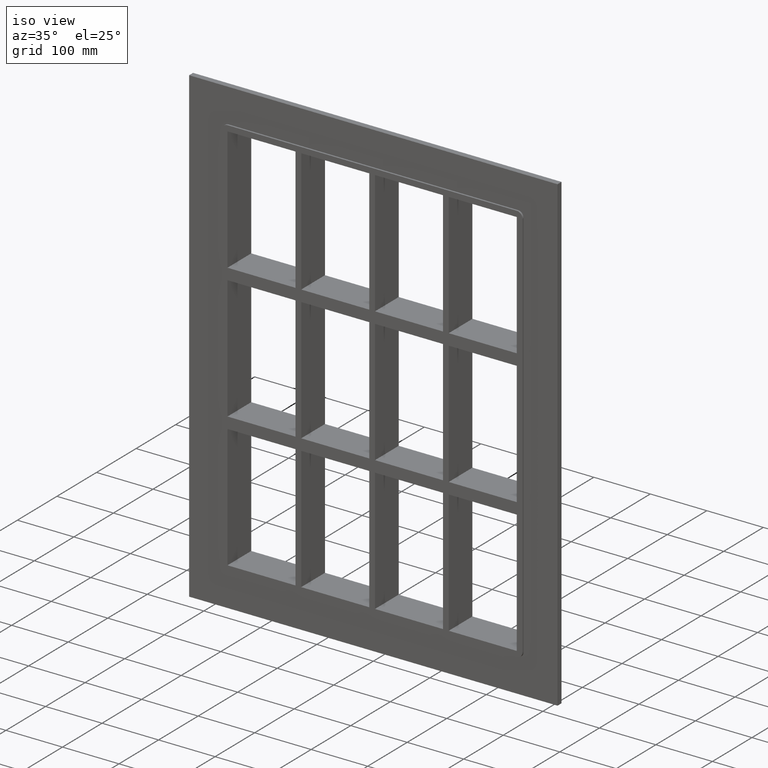
[diagram: clean part render]
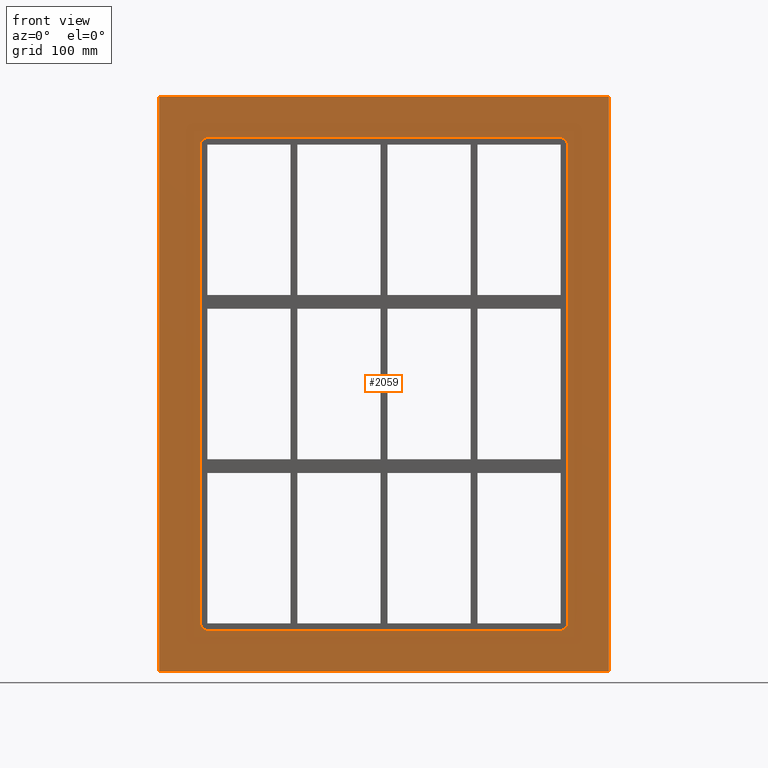
[diagram: tour spotlight — one face highlighted and labeled with its STEP entity id]
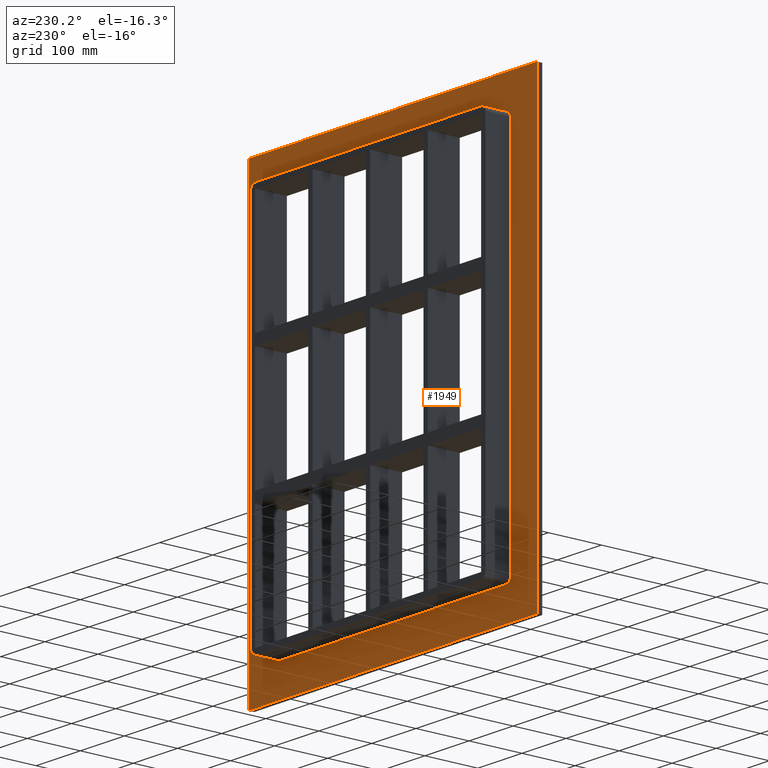
[diagram: tour spotlight — one face highlighted and labeled with its STEP entity id]
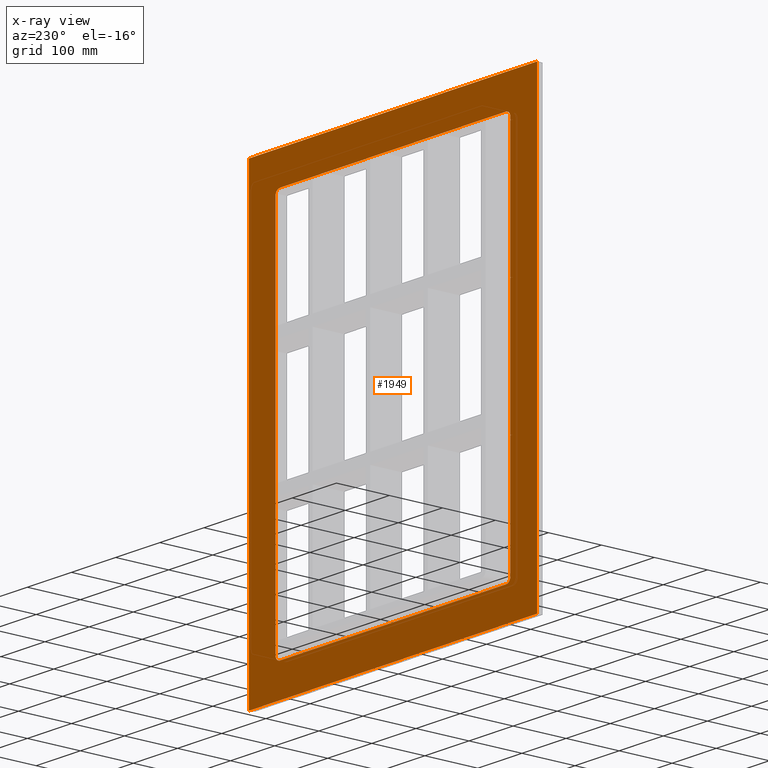
[diagram: x-ray of the same camera — body ghosted, this tour face saturated]
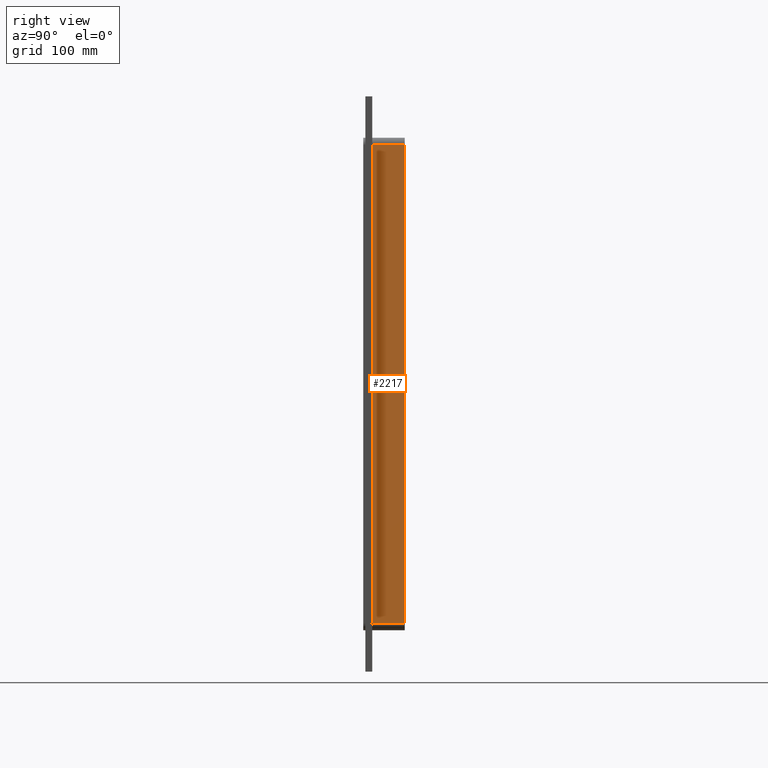
[diagram: tour spotlight — one face highlighted and labeled with its STEP entity id]
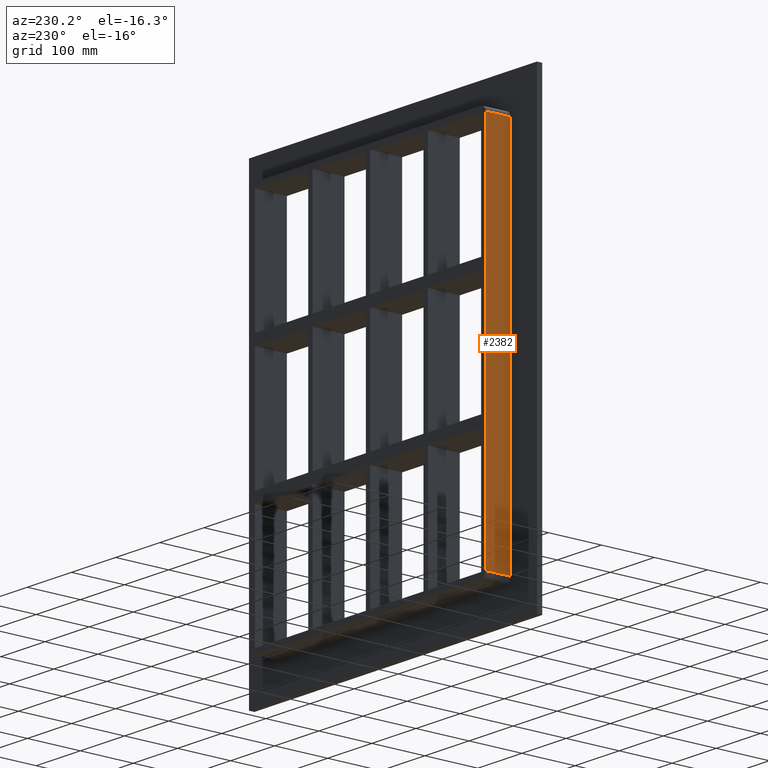
[diagram: tour spotlight — one face highlighted and labeled with its STEP entity id]
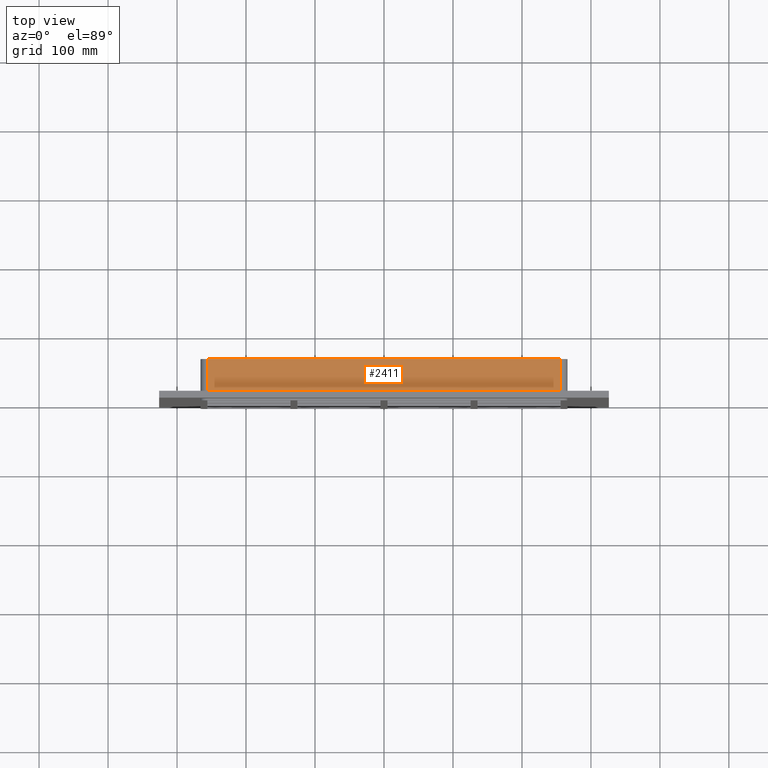
[diagram: tour spotlight — one face highlighted and labeled with its STEP entity id]
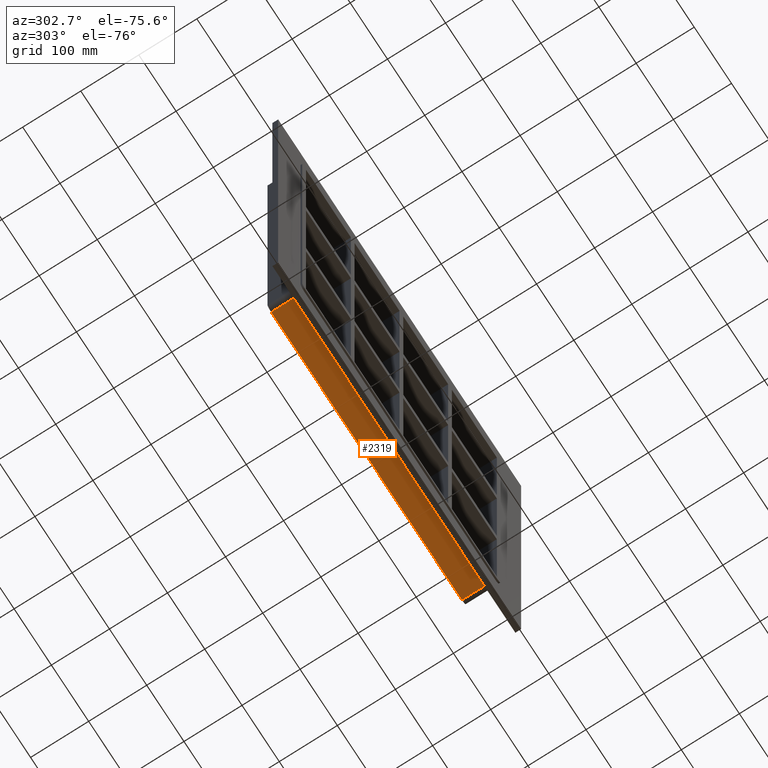
[diagram: tour spotlight — one face highlighted and labeled with its STEP entity id]
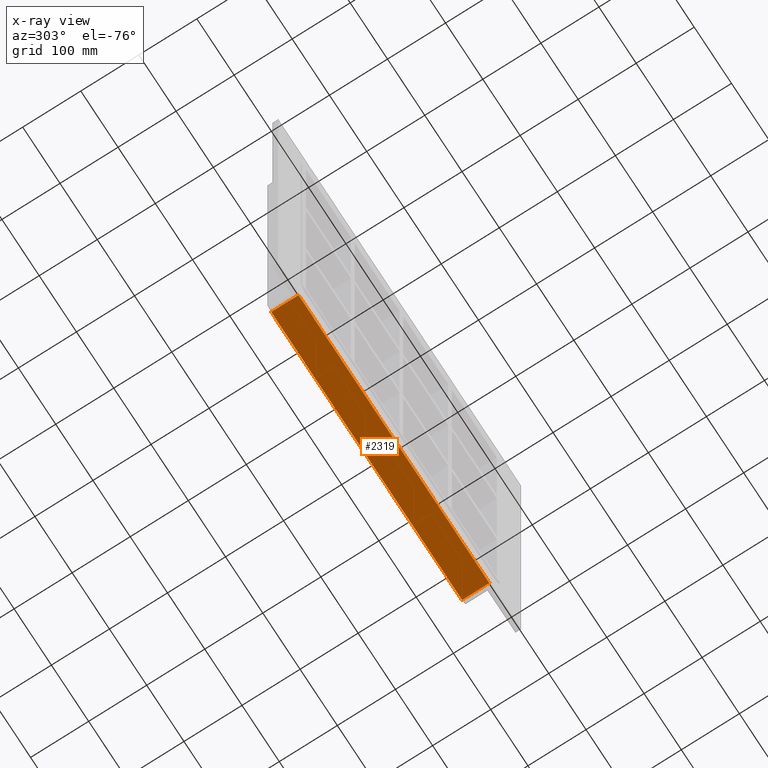
[diagram: x-ray of the same camera — body ghosted, this tour face saturated]
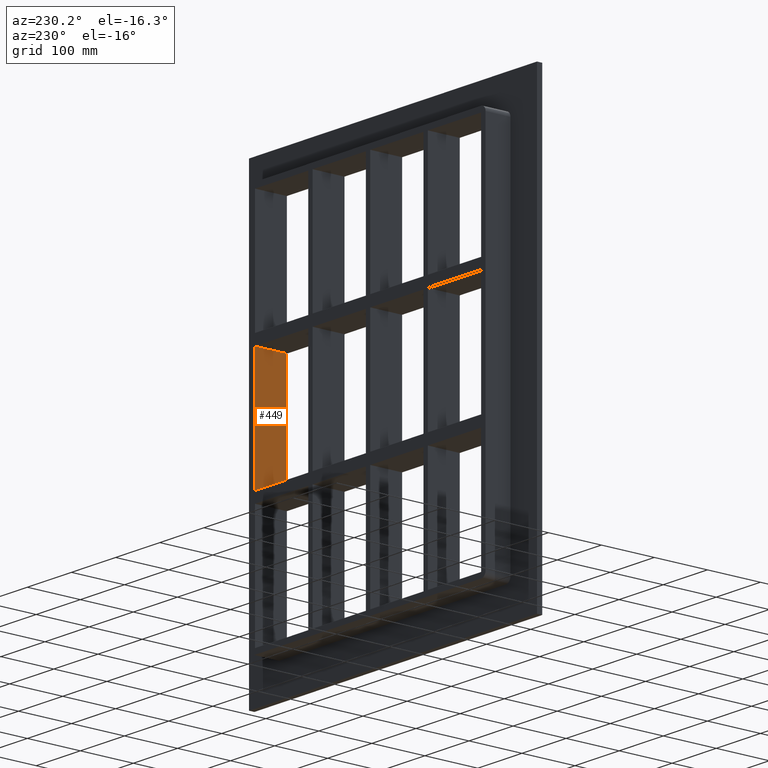
[diagram: tour spotlight — one face highlighted and labeled with its STEP entity id]
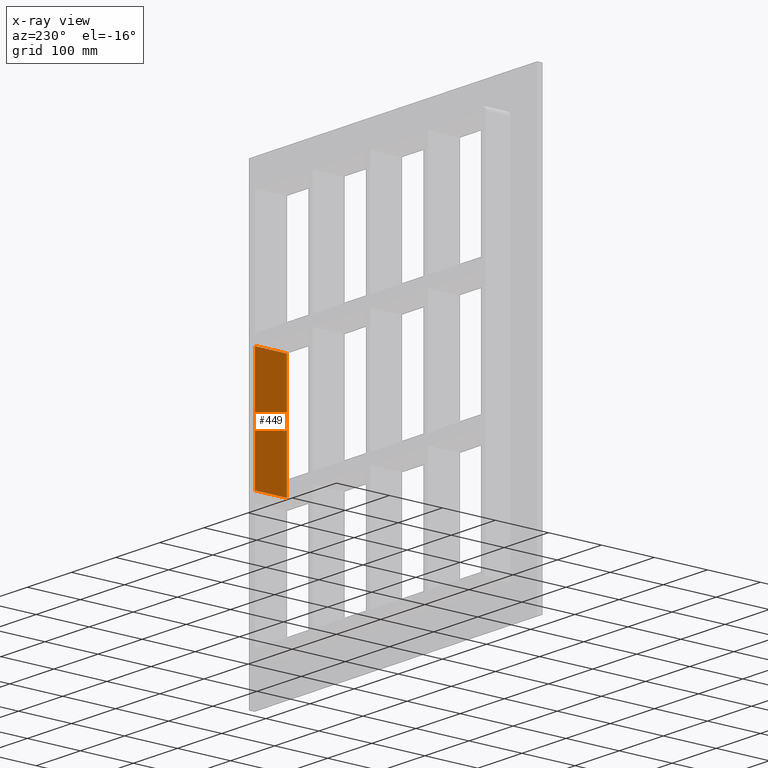
[diagram: x-ray of the same camera — body ghosted, this tour face saturated]
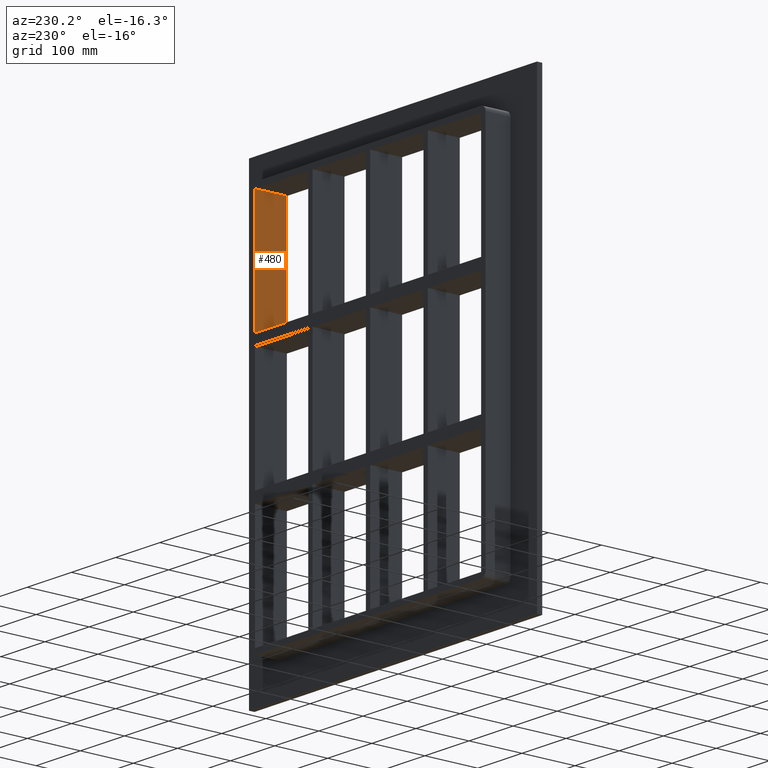
[diagram: tour spotlight — one face highlighted and labeled with its STEP entity id]
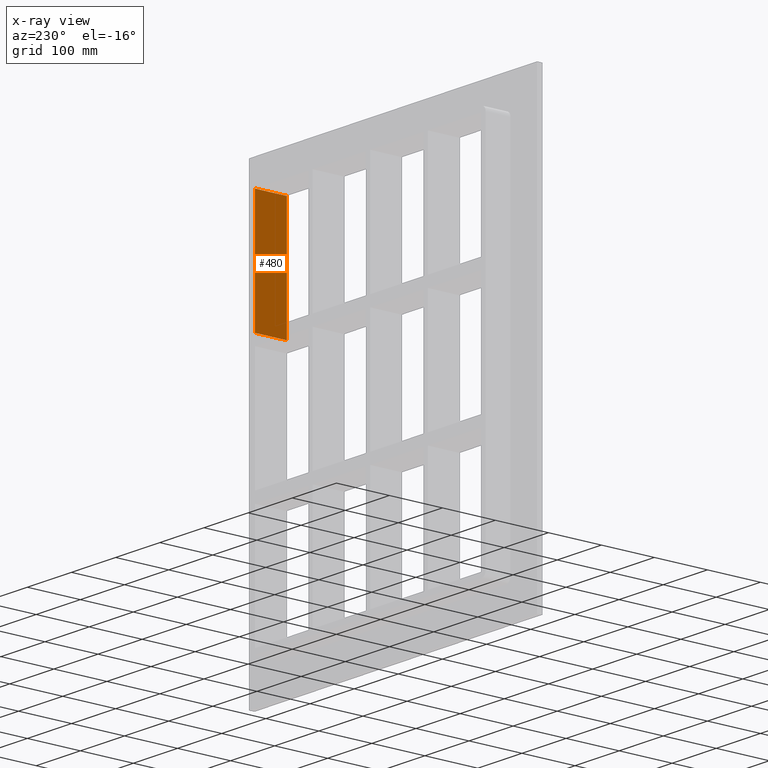
[diagram: x-ray of the same camera — body ghosted, this tour face saturated]
A machine part: a face-by-face anatomy tour. The part has 72 B-rep faces; the first image is the clean iso view, then the 8 largest visible faces are spotlighted one at a time (largest first), each with its STEP entity span.

Face 1 — front view, entity #2059. In plain terms, the highlighted planar face has unit normal (0, 1, 0).
Definition (entity closure, byte-faithful):
#1950=CARTESIAN_POINT('',(-2.295158E-014,0.0,0.0));
#1951=DIRECTION('',(0.0,1.0,0.0));
#1952=DIRECTION('',(0.0,0.0,1.0));
#1953=AXIS2_PLACEMENT_3D('',#1950,#1951,#1952);
#1954=PLANE('',#1953);
#1955=CARTESIAN_POINT('',(-326.0,0.0,417.00000000000011));
#1956=VERTEX_POINT('',#1955);
#1957=CARTESIAN_POINT('',(325.99999999999994,0.0,417.00000000000011));
#1958=VERTEX_POINT('',#1957);
#1959=CARTESIAN_POINT('',(-326.0,0.0,417.00000000000011));
#1960=DIRECTION('',(1.0,0.0,0.0));
#1961=VECTOR('',#1960,651.99999999999989);
#1962=LINE('',#1959,#1961);
#1963=EDGE_CURVE('',#1956,#1958,#1962,.T.);
#1964=ORIENTED_EDGE('',*,*,#1963,.F.);
#1965=CARTESIAN_POINT('',(-326.0,0.0,-417.00000000000011));
#1966=VERTEX_POINT('',#1965);
#1967=CARTESIAN_POINT('',(-326.0,0.0,-417.00000000000011));
#1968=DIRECTION('',(0.0,0.0,1.0));
#1969=VECTOR('',#1968,834.00000000000023);
#1970=LINE('',#1967,#1969);
#1971=EDGE_CURVE('',#1966,#1956,#1970,.T.);
#1972=ORIENTED_EDGE('',*,*,#1971,.F.);
#1973=CARTESIAN_POINT('',(325.99999999999994,0.0,-417.00000000000011));
#1974=VERTEX_POINT('',#1973);
#1975=CARTESIAN_POINT('',(325.99999999999994,0.0,-417.00000000000011));
#1976=DIRECTION('',(-1.0,0.0,0.0));
#1977=VECTOR('',#1976,651.99999999999989);
#1978=LINE('',#1975,#1977);
#1979=EDGE_CURVE('',#1974,#1966,#1978,.T.);
#1980=ORIENTED_EDGE('',*,*,#1979,.F.);
#1981=CARTESIAN_POINT('',(325.99999999999994,0.0,417.00000000000011));
#1982=DIRECTION('',(0.0,0.0,-1.0));
#1983=VECTOR('',#1982,834.00000000000023);
#1984=LINE('',#1981,#1983);
#1985=EDGE_CURVE('',#1958,#1974,#1984,.T.);
#1986=ORIENTED_EDGE('',*,*,#1985,.F.);
#1987=EDGE_LOOP('',(#1964,#1972,#1980,#1986));
#1988=FACE_OUTER_BOUND('',#1987,.T.);
#1989=CARTESIAN_POINT('',(-266.0,0.0,-347.0));
#1990=VERTEX_POINT('',#1989);
#1991=CARTESIAN_POINT('',(-256.0,0.0,-357.0));
#1992=VERTEX_POINT('',#1991);
#1993=CARTESIAN_POINT('',(-256.0,0.0,-347.0));
#1994=DIRECTION('',(0.0,-1.0,0.0));
#1995=DIRECTION('',(-0.707106781186547,0.0,-0.707106781186547));
#1996=AXIS2_PLACEMENT_3D('',#1993,#1994,#1995);
#1997=CIRCLE('',#1996,9.999999999999998);
#1998=EDGE_CURVE('',#1990,#1992,#1997,.T.);
#1999=ORIENTED_EDGE('',*,*,#1998,.F.);
#2000=CARTESIAN_POINT('',(-266.0,0.0,347.0));
#2001=VERTEX_POINT('',#2000);
#2002=CARTESIAN_POINT('',(-266.0,0.0,347.0));
#2003=DIRECTION('',(0.0,0.0,-1.0));
#2004=VECTOR('',#2003,694.0);
#2005=LINE('',#2002,#2004);
#2006=EDGE_CURVE('',#2001,#1990,#2005,.T.);
#2007=ORIENTED_EDGE('',*,*,#2006,.F.);
#2008=CARTESIAN_POINT('',(-256.0,0.0,357.0));
#2009=VERTEX_POINT('',#2008);
#2010=CARTESIAN_POINT('',(-256.0,0.0,347.0));
#2011=DIRECTION('',(0.0,-1.0,0.0));
#2012=DIRECTION('',(-0.707106781186547,0.0,0.707106781186547));
#2013=AXIS2_PLACEMENT_3D('',#2010,#2011,#2012);
#2014=CIRCLE('',#2013,9.999999999999998);
#2015=EDGE_CURVE('',#2009,#2001,#2014,.T.);
#2016=ORIENTED_EDGE('',*,*,#2015,.F.);
#2017=CARTESIAN_POINT('',(256.0,0.0,357.0));
#2018=VERTEX_POINT('',#2017);
#2019=CARTESIAN_POINT('',(256.0,0.0,357.0));
#2020=DIRECTION('',(-1.0,0.0,0.0));
#2021=VECTOR('',#2020,512.0);
#2022=LINE('',#2019,#2021);
#2023=EDGE_CURVE('',#2018,#2009,#2022,.T.);
#2024=ORIENTED_EDGE('',*,*,#2023,.F.);
#2025=CARTESIAN_POINT('',(266.0,0.0,347.0));
#2026=VERTEX_POINT('',#2025);
#2027=CARTESIAN_POINT('',(256.0,0.0,347.0));
#2028=DIRECTION('',(0.0,-1.0,0.0));
#2029=DIRECTION('',(0.707106781186547,0.0,0.707106781186547));
#2030=AXIS2_PLACEMENT_3D('',#2027,#2028,#2029);
#2031=CIRCLE('',#2030,9.999999999999998);
#2032=EDGE_CURVE('',#2026,#2018,#2031,.T.);
#2033=ORIENTED_EDGE('',*,*,#2032,.F.);
#2034=CARTESIAN_POINT('',(266.0,0.0,-347.0));
#2035=VERTEX_POINT('',#2034);
#2036=CARTESIAN_POINT('',(266.0,0.0,-347.0));
#2037=DIRECTION('',(0.0,0.0,1.0));
#2038=VECTOR('',#2037,694.0);
#2039=LINE('',#2036,#2038);
#2040=EDGE_CURVE('',#2035,#2026,#2039,.T.);
#2041=ORIENTED_EDGE('',*,*,#2040,.F.);
#2042=CARTESIAN_POINT('',(256.0,0.0,-357.0));
#2043=VERTEX_POINT('',#2042);
#2044=CARTESIAN_POINT('',(256.0,0.0,-347.0));
#2045=DIRECTION('',(0.0,-1.0,0.0));
#2046=DIRECTION('',(0.707106781186547,0.0,-0.707106781186547));
#2047=AXIS2_PLACEMENT_3D('',#2044,#2045,#2046);
#2048=CIRCLE('',#2047,9.999999999999998);
#2049=EDGE_CURVE('',#2043,#2035,#2048,.T.);
#2050=ORIENTED_EDGE('',*,*,#2049,.F.);
#2051=CARTESIAN_POINT('',(-256.0,0.0,-357.0));
#2052=DIRECTION('',(1.0,0.0,0.0));
#2053=VECTOR('',#2052,512.0);
#2054=LINE('',#2051,#2053);
#2055=EDGE_CURVE('',#1992,#2043,#2054,.T.);
#2056=ORIENTED_EDGE('',*,*,#2055,.F.);
#2057=EDGE_LOOP('',(#1999,#2007,#2016,#2024,#2033,#2041,#2050,#2056));
#2058=FACE_BOUND('',#2057,.T.);
#2059=ADVANCED_FACE('',(#1988,#2058),#1954,.F.);

Face 2 — auxiliary view, entity #1949. An x-ray twin of the same camera follows (body ghosted, this face saturated) — the face is partly hidden behind the body. In plain terms, the highlighted planar face has unit normal (0, 1, 0).
Definition (entity closure, byte-faithful):
#1840=CARTESIAN_POINT('',(-2.295158E-014,10.0,0.0));
#1841=DIRECTION('',(0.0,1.0,0.0));
#1842=DIRECTION('',(0.0,0.0,1.0));
#1843=AXIS2_PLACEMENT_3D('',#1840,#1841,#1842);
#1844=PLANE('',#1843);
#1845=CARTESIAN_POINT('',(-326.0,10.0,417.00000000000011));
#1846=VERTEX_POINT('',#1845);
#1847=CARTESIAN_POINT('',(325.99999999999989,10.0,417.00000000000011));
#1848=VERTEX_POINT('',#1847);
#1849=CARTESIAN_POINT('',(-326.0,10.0,417.00000000000011));
#1850=DIRECTION('',(1.0,0.0,0.0));
#1851=VECTOR('',#1850,651.99999999999989);
#1852=LINE('',#1849,#1851);
#1853=EDGE_CURVE('',#1846,#1848,#1852,.T.);
#1854=ORIENTED_EDGE('',*,*,#1853,.T.);
#1855=CARTESIAN_POINT('',(325.99999999999989,10.0,-417.00000000000011));
#1856=VERTEX_POINT('',#1855);
#1857=CARTESIAN_POINT('',(325.99999999999994,10.0,417.00000000000011));
#1858=DIRECTION('',(0.0,0.0,-1.0));
#1859=VECTOR('',#1858,834.00000000000023);
#1860=LINE('',#1857,#1859);
#1861=EDGE_CURVE('',#1848,#1856,#1860,.T.);
#1862=ORIENTED_EDGE('',*,*,#1861,.T.);
#1863=CARTESIAN_POINT('',(-326.0,10.0,-417.00000000000011));
#1864=VERTEX_POINT('',#1863);
#1865=CARTESIAN_POINT('',(325.99999999999994,10.0,-417.00000000000011));
#1866=DIRECTION('',(-1.0,0.0,0.0));
#1867=VECTOR('',#1866,651.99999999999989);
#1868=LINE('',#1865,#1867);
#1869=EDGE_CURVE('',#1856,#1864,#1868,.T.);
#1870=ORIENTED_EDGE('',*,*,#1869,.T.);
#1871=CARTESIAN_POINT('',(-326.0,10.0,-417.00000000000011));
#1872=DIRECTION('',(0.0,0.0,1.0));
#1873=VECTOR('',#1872,834.00000000000023);
#1874=LINE('',#1871,#1873);
#1875=EDGE_CURVE('',#1864,#1846,#1874,.T.);
#1876=ORIENTED_EDGE('',*,*,#1875,.T.);
#1877=EDGE_LOOP('',(#1854,#1862,#1870,#1876));
#1878=FACE_OUTER_BOUND('',#1877,.T.);
#1879=CARTESIAN_POINT('',(-256.0,10.0,-357.0));
#1880=VERTEX_POINT('',#1879);
#1881=CARTESIAN_POINT('',(-266.0,10.0,-347.0));
#1882=VERTEX_POINT('',#1881);
#1883=CARTESIAN_POINT('',(-256.0,10.0,-347.0));
#1884=DIRECTION('',(0.0,1.0,0.0));
#1885=DIRECTION('',(-0.707106781186547,0.0,-0.707106781186547));
#1886=AXIS2_PLACEMENT_3D('',#1883,#1884,#1885);
#1887=CIRCLE('',#1886,9.999999999999998);
#1888=EDGE_CURVE('',#1880,#1882,#1887,.T.);
#1889=ORIENTED_EDGE('',*,*,#1888,.F.);
#1890=CARTESIAN_POINT('',(256.0,10.0,-357.0));
#1891=VERTEX_POINT('',#1890);
#1892=CARTESIAN_POINT('',(256.0,10.0,-357.0));
#1893=DIRECTION('',(-1.0,0.0,0.0));
#1894=VECTOR('',#1893,512.0);
#1895=LINE('',#1892,#1894);
#1896=EDGE_CURVE('',#1891,#1880,#1895,.T.);
#1897=ORIENTED_EDGE('',*,*,#1896,.F.);
#1898=CARTESIAN_POINT('',(266.0,10.0,-347.0));
#1899=VERTEX_POINT('',#1898);
#1900=CARTESIAN_POINT('',(256.0,10.0,-347.0));
#1901=DIRECTION('',(0.0,1.0,0.0));
#1902=DIRECTION('',(0.707106781186547,0.0,-0.707106781186547));
#1903=AXIS2_PLACEMENT_3D('',#1900,#1901,#1902);
#1904=CIRCLE('',#1903,9.999999999999998);
#1905=EDGE_CURVE('',#1899,#1891,#1904,.T.);
#1906=ORIENTED_EDGE('',*,*,#1905,.F.);
#1907=CARTESIAN_POINT('',(266.0,10.0,347.0));
#1908=VERTEX_POINT('',#1907);
#1909=CARTESIAN_POINT('',(266.0,10.0,347.0));
#1910=DIRECTION('',(0.0,0.0,-1.0));
#1911=VECTOR('',#1910,694.0);
#1912=LINE('',#1909,#1911);
#1913=EDGE_CURVE('',#1908,#1899,#1912,.T.);
#1914=ORIENTED_EDGE('',*,*,#1913,.F.);
#1915=CARTESIAN_POINT('',(256.0,10.0,357.0));
#1916=VERTEX_POINT('',#1915);
#1917=CARTESIAN_POINT('',(256.0,10.0,347.0));
#1918=DIRECTION('',(0.0,1.0,0.0));
#1919=DIRECTION('',(0.707106781186547,0.0,0.707106781186547));
#1920=AXIS2_PLACEMENT_3D('',#1917,#1918,#1919);
#1921=CIRCLE('',#1920,9.999999999999998);
#1922=EDGE_CURVE('',#1916,#1908,#1921,.T.);
#1923=ORIENTED_EDGE('',*,*,#1922,.F.);
#1924=CARTESIAN_POINT('',(-256.0,10.0,357.0));
#1925=VERTEX_POINT('',#1924);
#1926=CARTESIAN_POINT('',(-256.0,10.0,357.0));
#1927=DIRECTION('',(1.0,0.0,0.0));
#1928=VECTOR('',#1927,512.0);
#1929=LINE('',#1926,#1928);
#1930=EDGE_CURVE('',#1925,#1916,#1929,.T.);
#1931=ORIENTED_EDGE('',*,*,#1930,.F.);
#1932=CARTESIAN_POINT('',(-266.0,10.0,347.0));
#1933=VERTEX_POINT('',#1932);
#1934=CARTESIAN_POINT('',(-256.0,10.0,347.0));
#1935=DIRECTION('',(0.0,1.0,0.0));
#1936=DIRECTION('',(-0.707106781186547,0.0,0.707106781186547));
#1937=AXIS2_PLACEMENT_3D('',#1934,#1935,#1936);
#1938=CIRCLE('',#1937,9.999999999999998);
#1939=EDGE_CURVE('',#1933,#1925,#1938,.T.);
#1940=ORIENTED_EDGE('',*,*,#1939,.F.);
#1941=CARTESIAN_POINT('',(-266.0,10.0,-347.0));
#1942=DIRECTION('',(0.0,0.0,1.0));
#1943=VECTOR('',#1942,694.0);
#1944=LINE('',#1941,#1943);
#1945=EDGE_CURVE('',#1882,#1933,#1944,.T.);
#1946=ORIENTED_EDGE('',*,*,#1945,.F.);
#1947=EDGE_LOOP('',(#1889,#1897,#1906,#1914,#1923,#1931,#1940,#1946));
#1948=FACE_BOUND('',#1947,.T.);
#1949=ADVANCED_FACE('',(#1878,#1948),#1844,.T.);

Face 3 — right view, entity #2217. In plain terms, the highlighted planar face has unit normal (1, 0, 0).
Definition (entity closure, byte-faithful):
#705=CARTESIAN_POINT('',(266.0,57.0,-347.0));
#706=VERTEX_POINT('',#705);
#756=CARTESIAN_POINT('',(266.0,57.0,347.0));
#757=VERTEX_POINT('',#756);
#765=CARTESIAN_POINT('',(266.0,57.0,347.0));
#766=DIRECTION('',(0.0,0.0,-1.0));
#767=VECTOR('',#766,694.0);
#768=LINE('',#765,#767);
#769=EDGE_CURVE('',#757,#706,#768,.T.);
#1898=CARTESIAN_POINT('',(266.0,10.0,-347.0));
#1899=VERTEX_POINT('',#1898);
#1907=CARTESIAN_POINT('',(266.0,10.0,347.0));
#1908=VERTEX_POINT('',#1907);
#1909=CARTESIAN_POINT('',(266.0,10.0,347.0));
#1910=DIRECTION('',(0.0,0.0,-1.0));
#1911=VECTOR('',#1910,694.0);
#1912=LINE('',#1909,#1911);
#1913=EDGE_CURVE('',#1908,#1899,#1912,.T.);
#2168=CARTESIAN_POINT('',(266.0,10.0,347.0));
#2169=DIRECTION('',(0.0,1.0,0.0));
#2170=VECTOR('',#2169,47.0);
#2171=LINE('',#2168,#2170);
#2172=EDGE_CURVE('',#1908,#757,#2171,.T.);
#2201=CARTESIAN_POINT('',(266.0,0.0,357.0));
#2202=DIRECTION('',(1.0,0.0,0.0));
#2203=DIRECTION('',(0.0,0.0,-1.0));
#2204=AXIS2_PLACEMENT_3D('',#2201,#2202,#2203);
#2205=PLANE('',#2204);
#2206=ORIENTED_EDGE('',*,*,#1913,.T.);
#2207=CARTESIAN_POINT('',(266.0,57.0,-347.0));
#2208=DIRECTION('',(0.0,-1.0,0.0));
#2209=VECTOR('',#2208,47.0);
#2210=LINE('',#2207,#2209);
#2211=EDGE_CURVE('',#706,#1899,#2210,.T.);
#2212=ORIENTED_EDGE('',*,*,#2211,.F.);
#2213=ORIENTED_EDGE('',*,*,#769,.F.);
#2214=ORIENTED_EDGE('',*,*,#2172,.F.);
#2215=EDGE_LOOP('',(#2206,#2212,#2213,#2214));
#2216=FACE_OUTER_BOUND('',#2215,.T.);
#2217=ADVANCED_FACE('',(#2216),#2205,.T.);

Face 4 — auxiliary view, entity #2382. In plain terms, the highlighted planar face has unit normal (-1, 0, 0).
Definition (entity closure, byte-faithful):
#722=CARTESIAN_POINT('',(-266.0,57.0,-347.0));
#723=VERTEX_POINT('',#722);
#731=CARTESIAN_POINT('',(-266.0,57.0,347.0));
#732=VERTEX_POINT('',#731);
#733=CARTESIAN_POINT('',(-266.0,57.0,-347.0));
#734=DIRECTION('',(0.0,0.0,1.0));
#735=VECTOR('',#734,694.0);
#736=LINE('',#733,#735);
#737=EDGE_CURVE('',#723,#732,#736,.T.);
#1881=CARTESIAN_POINT('',(-266.0,10.0,-347.0));
#1882=VERTEX_POINT('',#1881);
#1932=CARTESIAN_POINT('',(-266.0,10.0,347.0));
#1933=VERTEX_POINT('',#1932);
#1941=CARTESIAN_POINT('',(-266.0,10.0,-347.0));
#1942=DIRECTION('',(0.0,0.0,1.0));
#1943=VECTOR('',#1942,694.0);
#1944=LINE('',#1941,#1943);
#1945=EDGE_CURVE('',#1882,#1933,#1944,.T.);
#2355=CARTESIAN_POINT('',(-266.0,10.0,-347.0));
#2356=DIRECTION('',(0.0,1.0,0.0));
#2357=VECTOR('',#2356,47.0);
#2358=LINE('',#2355,#2357);
#2359=EDGE_CURVE('',#1882,#723,#2358,.T.);
#2366=CARTESIAN_POINT('',(-266.0,0.0,-357.0));
#2367=DIRECTION('',(-1.0,0.0,0.0));
#2368=DIRECTION('',(0.0,0.0,1.0));
#2369=AXIS2_PLACEMENT_3D('',#2366,#2367,#2368);
#2370=PLANE('',#2369);
#2371=ORIENTED_EDGE('',*,*,#1945,.T.);
#2372=CARTESIAN_POINT('',(-266.0,57.0,347.0));
#2373=DIRECTION('',(0.0,-1.0,0.0));
#2374=VECTOR('',#2373,47.0);
#2375=LINE('',#2372,#2374);
#2376=EDGE_CURVE('',#732,#1933,#2375,.T.);
#2377=ORIENTED_EDGE('',*,*,#2376,.F.);
#2378=ORIENTED_EDGE('',*,*,#737,.F.);
#2379=ORIENTED_EDGE('',*,*,#2359,.F.);
#2380=EDGE_LOOP('',(#2371,#2377,#2378,#2379));
#2381=FACE_OUTER_BOUND('',#2380,.T.);
#2382=ADVANCED_FACE('',(#2381),#2370,.T.);

Face 5 — top view, entity #2411. In plain terms, the highlighted planar face has unit normal (0, 0, 1).
Definition (entity closure, byte-faithful):
#739=CARTESIAN_POINT('',(-256.0,57.0,357.0));
#740=VERTEX_POINT('',#739);
#748=CARTESIAN_POINT('',(256.0,57.0,357.0));
#749=VERTEX_POINT('',#748);
#750=CARTESIAN_POINT('',(-256.0,57.0,357.0));
#751=DIRECTION('',(1.0,0.0,0.0));
#752=VECTOR('',#751,512.0);
#753=LINE('',#750,#752);
#754=EDGE_CURVE('',#740,#749,#753,.T.);
#1915=CARTESIAN_POINT('',(256.0,10.0,357.0));
#1916=VERTEX_POINT('',#1915);
#1924=CARTESIAN_POINT('',(-256.0,10.0,357.0));
#1925=VERTEX_POINT('',#1924);
#1926=CARTESIAN_POINT('',(-256.0,10.0,357.0));
#1927=DIRECTION('',(1.0,0.0,0.0));
#1928=VECTOR('',#1927,512.0);
#1929=LINE('',#1926,#1928);
#1930=EDGE_CURVE('',#1925,#1916,#1929,.T.);
#2175=CARTESIAN_POINT('',(256.0,57.0,357.0));
#2176=DIRECTION('',(0.0,-1.0,0.0));
#2177=VECTOR('',#2176,47.0);
#2178=LINE('',#2175,#2177);
#2179=EDGE_CURVE('',#749,#1916,#2178,.T.);
#2389=CARTESIAN_POINT('',(-256.0,10.0,357.0));
#2390=DIRECTION('',(0.0,1.0,0.0));
#2391=VECTOR('',#2390,47.0);
#2392=LINE('',#2389,#2391);
#2393=EDGE_CURVE('',#1925,#740,#2392,.T.);
#2400=CARTESIAN_POINT('',(-266.0,0.0,357.0));
#2401=DIRECTION('',(0.0,0.0,1.0));
#2402=DIRECTION('',(1.0,0.0,0.0));
#2403=AXIS2_PLACEMENT_3D('',#2400,#2401,#2402);
#2404=PLANE('',#2403);
#2405=ORIENTED_EDGE('',*,*,#1930,.T.);
#2406=ORIENTED_EDGE('',*,*,#2179,.F.);
#2407=ORIENTED_EDGE('',*,*,#754,.F.);
#2408=ORIENTED_EDGE('',*,*,#2393,.F.);
#2409=EDGE_LOOP('',(#2405,#2406,#2407,#2408));
#2410=FACE_OUTER_BOUND('',#2409,.T.);
#2411=ADVANCED_FACE('',(#2410),#2404,.T.);

Face 6 — auxiliary view, entity #2319. An x-ray twin of the same camera follows (body ghosted, this face saturated) — the face is partly hidden behind the body. In plain terms, the highlighted planar face has unit normal (0, 0, -1).
Definition (entity closure, byte-faithful):
#703=CARTESIAN_POINT('',(256.0,57.0,-357.0));
#704=VERTEX_POINT('',#703);
#714=CARTESIAN_POINT('',(-256.0,57.0,-357.0));
#715=VERTEX_POINT('',#714);
#716=CARTESIAN_POINT('',(256.0,57.0,-357.0));
#717=DIRECTION('',(-1.0,0.0,0.0));
#718=VECTOR('',#717,512.0);
#719=LINE('',#716,#718);
#720=EDGE_CURVE('',#704,#715,#719,.T.);
#1879=CARTESIAN_POINT('',(-256.0,10.0,-357.0));
#1880=VERTEX_POINT('',#1879);
#1890=CARTESIAN_POINT('',(256.0,10.0,-357.0));
#1891=VERTEX_POINT('',#1890);
#1892=CARTESIAN_POINT('',(256.0,10.0,-357.0));
#1893=DIRECTION('',(-1.0,0.0,0.0));
#1894=VECTOR('',#1893,512.0);
#1895=LINE('',#1892,#1894);
#1896=EDGE_CURVE('',#1891,#1880,#1895,.T.);
#2258=CARTESIAN_POINT('',(256.0,10.0,-357.0));
#2259=DIRECTION('',(0.0,1.0,0.0));
#2260=VECTOR('',#2259,47.0);
#2261=LINE('',#2258,#2260);
#2262=EDGE_CURVE('',#1891,#704,#2261,.T.);
#2303=CARTESIAN_POINT('',(266.0,0.0,-357.0));
#2304=DIRECTION('',(0.0,0.0,-1.0));
#2305=DIRECTION('',(-1.0,0.0,0.0));
#2306=AXIS2_PLACEMENT_3D('',#2303,#2304,#2305);
#2307=PLANE('',#2306);
#2308=ORIENTED_EDGE('',*,*,#1896,.T.);
#2309=CARTESIAN_POINT('',(-256.0,57.0,-357.0));
#2310=DIRECTION('',(0.0,-1.0,0.0));
#2311=VECTOR('',#2310,47.0);
#2312=LINE('',#2309,#2311);
#2313=EDGE_CURVE('',#715,#1880,#2312,.T.);
#2314=ORIENTED_EDGE('',*,*,#2313,.F.);
#2315=ORIENTED_EDGE('',*,*,#720,.F.);
#2316=ORIENTED_EDGE('',*,*,#2262,.F.);
#2317=EDGE_LOOP('',(#2308,#2314,#2315,#2316));
#2318=FACE_OUTER_BOUND('',#2317,.T.);
#2319=ADVANCED_FACE('',(#2318),#2307,.T.);

Face 7 — auxiliary view, entity #449. An x-ray twin of the same camera follows (body ghosted, this face saturated) — the face is partly hidden behind the body. In plain terms, the highlighted planar face has unit normal (1, 0, 0).
Definition (entity closure, byte-faithful):
#163=CARTESIAN_POINT('',(256.00000000000364,57.0,108.99999999999069));
#164=VERTEX_POINT('',#163);
#171=CARTESIAN_POINT('',(256.00000000000364,-3.0,108.99999999999069));
#172=VERTEX_POINT('',#171);
#173=CARTESIAN_POINT('',(255.99999999999997,-3.0,108.99999999999068));
#174=DIRECTION('',(0.0,1.0,0.0));
#175=VECTOR('',#174,60.000000000000007);
#176=LINE('',#173,#175);
#177=EDGE_CURVE('',#172,#164,#176,.T.);
#419=CARTESIAN_POINT('',(255.99999999999997,0.0,347.0));
#420=DIRECTION('',(1.0,0.0,0.0));
#421=DIRECTION('',(0.0,0.0,-1.0));
#422=AXIS2_PLACEMENT_3D('',#419,#420,#421);
#423=PLANE('',#422);
#424=ORIENTED_EDGE('',*,*,#177,.T.);
#425=CARTESIAN_POINT('',(255.99999999999989,57.0,-109.00000000000006));
#426=VERTEX_POINT('',#425);
#427=CARTESIAN_POINT('',(255.99999999999997,57.0,-109.00000000000006));
#428=DIRECTION('',(0.0,0.0,1.0));
#429=VECTOR('',#428,217.99999999999073);
#430=LINE('',#427,#429);
#431=EDGE_CURVE('',#426,#164,#430,.T.);
#432=ORIENTED_EDGE('',*,*,#431,.F.);
#433=CARTESIAN_POINT('',(255.99999999999989,-3.0,-109.00000000000006));
#434=VERTEX_POINT('',#433);
#435=CARTESIAN_POINT('',(256.0,57.000000000000007,-109.00000000000006));
#436=DIRECTION('',(0.0,-1.0,0.0));
#437=VECTOR('',#436,60.000000000000007);
#438=LINE('',#435,#437);
#439=EDGE_CURVE('',#426,#434,#438,.T.);
#440=ORIENTED_EDGE('',*,*,#439,.T.);
#441=CARTESIAN_POINT('',(255.99999999999997,-3.0,108.99999999999068));
#442=DIRECTION('',(0.0,0.0,-1.0));
#443=VECTOR('',#442,217.99999999999073);
#444=LINE('',#441,#443);
#445=EDGE_CURVE('',#172,#434,#444,.T.);
#446=ORIENTED_EDGE('',*,*,#445,.F.);
#447=EDGE_LOOP('',(#424,#432,#440,#446));
#448=FACE_OUTER_BOUND('',#447,.T.);
#449=ADVANCED_FACE('',(#448),#423,.F.);

Face 8 — auxiliary view, entity #480. An x-ray twin of the same camera follows (body ghosted, this face saturated) — the face is partly hidden behind the body. In plain terms, the highlighted planar face has unit normal (1, 0, 0).
Definition (entity closure, byte-faithful):
#283=CARTESIAN_POINT('',(255.99999999999989,-3.0,128.99999999999994));
#284=VERTEX_POINT('',#283);
#291=CARTESIAN_POINT('',(255.99999999999989,57.0,128.99999999999994));
#292=VERTEX_POINT('',#291);
#293=CARTESIAN_POINT('',(256.0,57.000000000000007,128.99999999999994));
#294=DIRECTION('',(0.0,-1.0,0.0));
#295=VECTOR('',#294,60.000000000000007);
#296=LINE('',#293,#295);
#297=EDGE_CURVE('',#292,#284,#296,.T.);
#450=CARTESIAN_POINT('',(255.99999999999997,0.0,347.0));
#451=DIRECTION('',(1.0,0.0,0.0));
#452=DIRECTION('',(0.0,0.0,-1.0));
#453=AXIS2_PLACEMENT_3D('',#450,#451,#452);
#454=PLANE('',#453);
#455=ORIENTED_EDGE('',*,*,#297,.T.);
#456=CARTESIAN_POINT('',(255.99999999999997,-3.0,347.00000000000011));
#457=VERTEX_POINT('',#456);
#458=CARTESIAN_POINT('',(255.99999999999997,-3.0,347.00000000000011));
#459=DIRECTION('',(0.0,0.0,-1.0));
#460=VECTOR('',#459,218.00000000000017);
#461=LINE('',#458,#460);
#462=EDGE_CURVE('',#457,#284,#461,.T.);
#463=ORIENTED_EDGE('',*,*,#462,.F.);
#464=CARTESIAN_POINT('',(255.99999999999997,57.0,347.00000000000011));
#465=VERTEX_POINT('',#464);
#466=CARTESIAN_POINT('',(255.99999999999997,-3.0,347.0));
#467=DIRECTION('',(0.0,1.0,0.0));
#468=VECTOR('',#467,60.0);
#469=LINE('',#466,#468);
#470=EDGE_CURVE('',#457,#465,#469,.T.);
#471=ORIENTED_EDGE('',*,*,#470,.T.);
#472=CARTESIAN_POINT('',(255.99999999999997,57.0,128.99999999999994));
#473=DIRECTION('',(0.0,0.0,1.0));
#474=VECTOR('',#473,218.00000000000017);
#475=LINE('',#472,#474);
#476=EDGE_CURVE('',#292,#465,#475,.T.);
#477=ORIENTED_EDGE('',*,*,#476,.F.);
#478=EDGE_LOOP('',(#455,#463,#471,#477));
#479=FACE_OUTER_BOUND('',#478,.T.);
#480=ADVANCED_FACE('',(#479),#454,.F.);